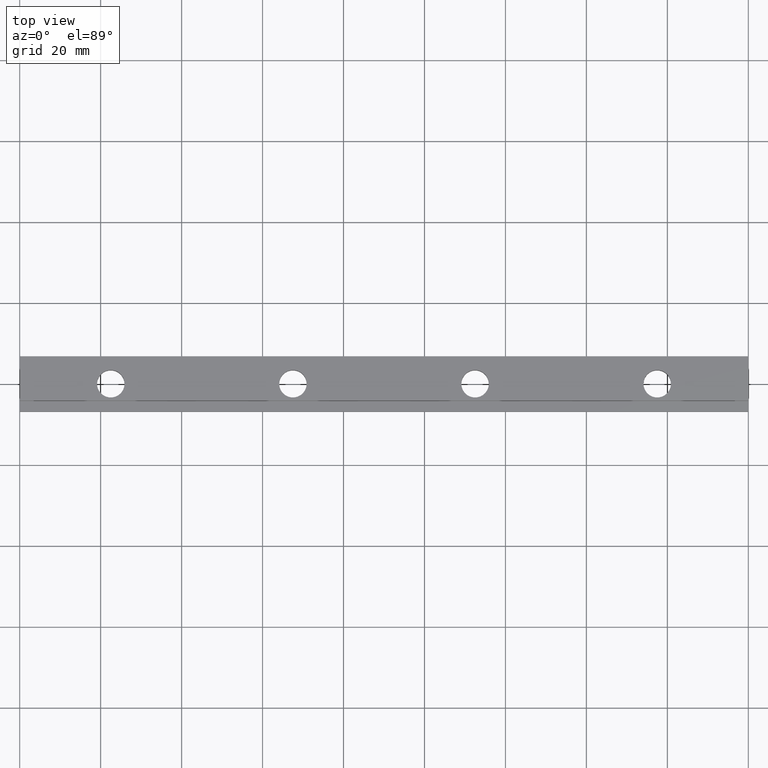
[diagram: clean part render]
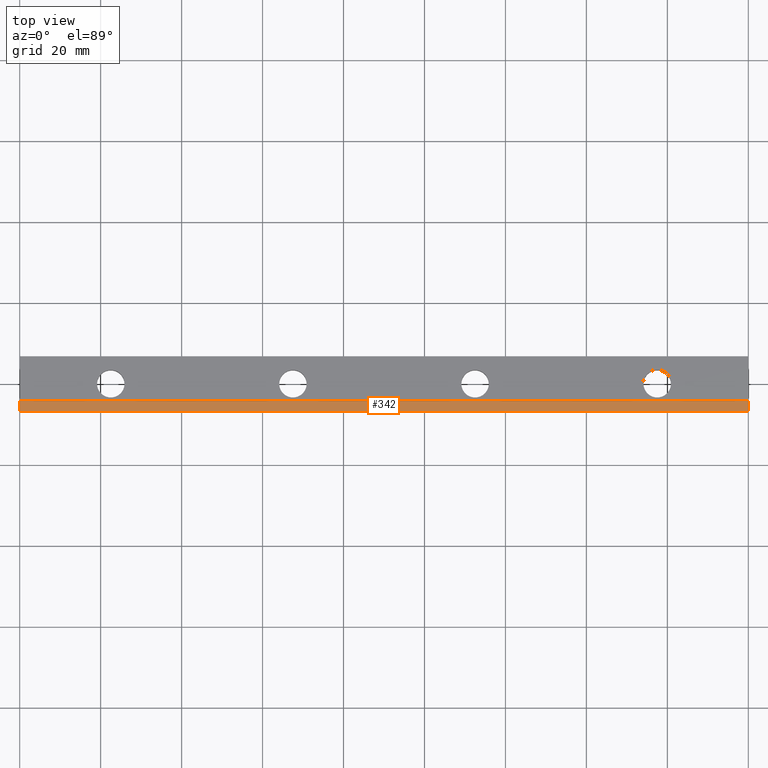
[diagram: same view with one face highlighted and labeled with its STEP entity id]
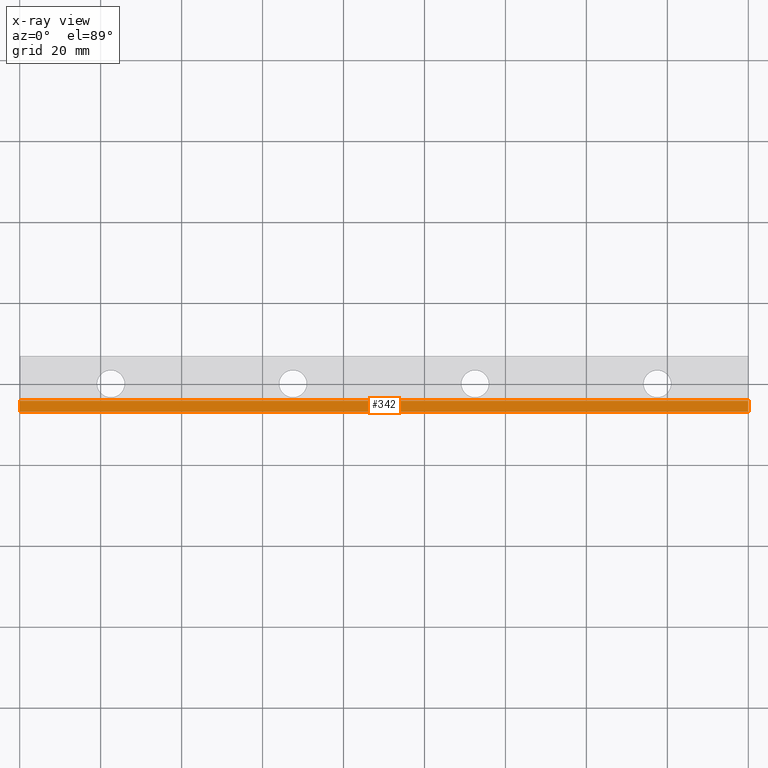
[diagram: x-ray of the same camera — body ghosted, the highlighted face saturated]
A machine part, top view. The second image highlights one B-rep face of the part: STEP entity #342.
The next image is the same camera in x-ray: the body ghosted, the highlighted face saturated — about 0% of this face is hidden behind the body in this view.
In plain terms, the highlighted planar face has unit normal (0, 0, 1).
Its self-contained STEP definition (entity closure, byte-faithful):
#286=CARTESIAN_POINT('',(3.972155E-015,-6.849999999999998,4.0));
#287=VERTEX_POINT('',#286);
#295=CARTESIAN_POINT('',(180.0,-6.849999999999987,4.0));
#296=VERTEX_POINT('',#295);
#303=CARTESIAN_POINT('',(180.0,-6.849999999999987,4.0));
#304=DIRECTION('',(-1.0,0.0,0.0));
#305=VECTOR('',#304,180.0);
#306=LINE('',#303,#305);
#307=EDGE_CURVE('',#296,#287,#306,.T.);
#312=CARTESIAN_POINT('',(189.0,-4.014999999999986,4.0));
#313=DIRECTION('',(0.0,0.0,1.0));
#314=DIRECTION('',(-1.0,0.0,0.0));
#315=AXIS2_PLACEMENT_3D('',#312,#313,#314);
#316=PLANE('',#315);
#317=CARTESIAN_POINT('',(3.806828E-015,-4.149999999999995,4.0));
#318=VERTEX_POINT('',#317);
#319=CARTESIAN_POINT('',(3.972155E-015,-6.849999999999998,4.0));
#320=DIRECTION('',(0.0,1.0,0.0));
#321=VECTOR('',#320,2.700000000000003);
#322=LINE('',#319,#321);
#323=EDGE_CURVE('',#287,#318,#322,.T.);
#324=ORIENTED_EDGE('',*,*,#323,.F.);
#325=ORIENTED_EDGE('',*,*,#307,.F.);
#326=CARTESIAN_POINT('',(180.0,-4.149999999999984,4.0));
#327=VERTEX_POINT('',#326);
#328=CARTESIAN_POINT('',(180.0,-6.849999999999987,4.0));
#329=DIRECTION('',(0.0,1.0,0.0));
#330=VECTOR('',#329,2.700000000000003);
#331=LINE('',#328,#330);
#332=EDGE_CURVE('',#296,#327,#331,.T.);
#333=ORIENTED_EDGE('',*,*,#332,.T.);
#334=CARTESIAN_POINT('',(180.0,-4.149999999999984,4.0));
#335=DIRECTION('',(-1.0,0.0,0.0));
#336=VECTOR('',#335,180.0);
#337=LINE('',#334,#336);
#338=EDGE_CURVE('',#327,#318,#337,.T.);
#339=ORIENTED_EDGE('',*,*,#338,.T.);
#340=EDGE_LOOP('',(#324,#325,#333,#339));
#341=FACE_OUTER_BOUND('',#340,.T.);
#342=ADVANCED_FACE('',(#341),#316,.T.);